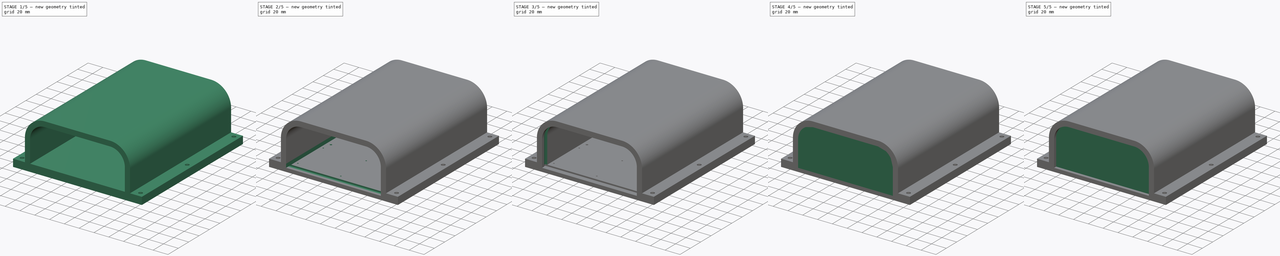
[diagram: build sequence overview — one tinted view per stage of 5, left to right]
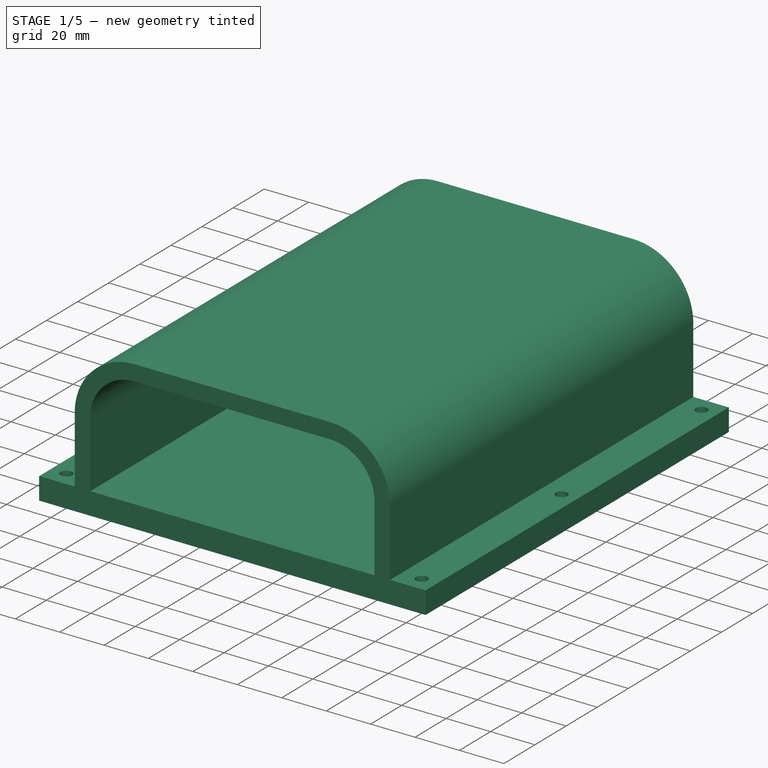
[diagram: stage 1 of 5 — iso view after this stage's code; geometry added in this stage tinted green]
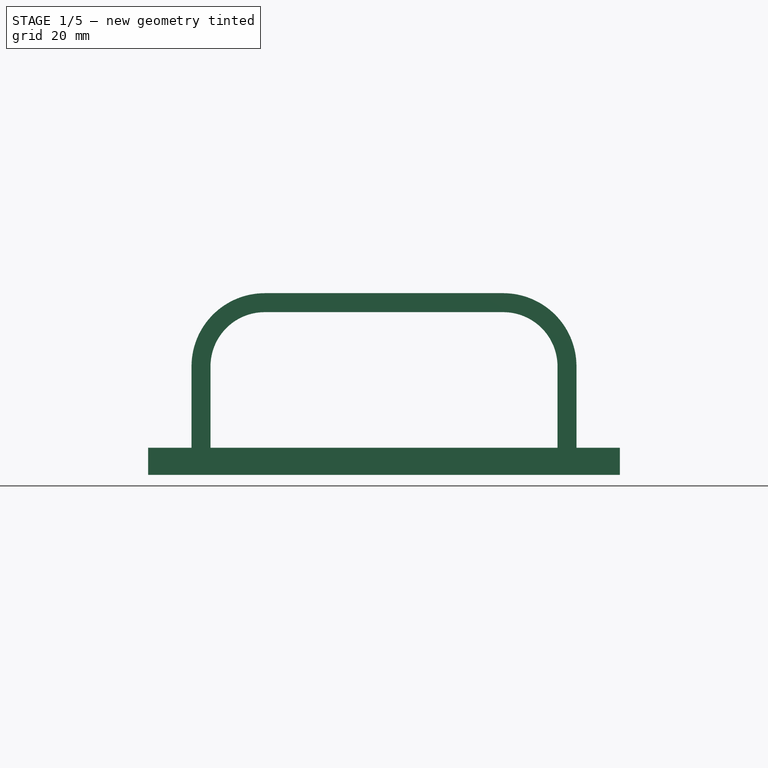
[diagram: stage 1 of 5 — front view after this stage's code; geometry added in this stage tinted green]
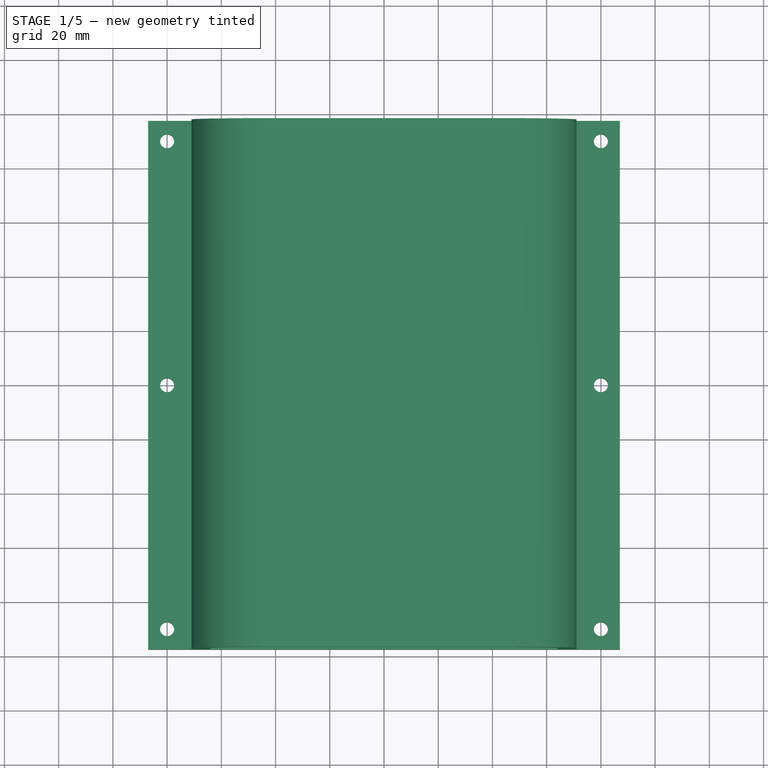
[diagram: stage 1 of 5 — top view after this stage's code; geometry added in this stage tinted green]
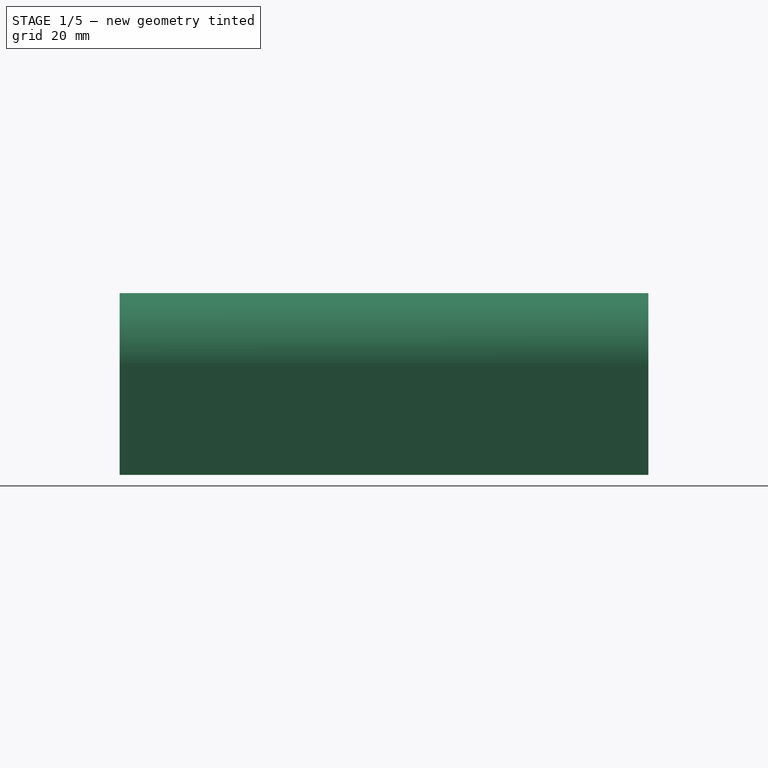
[diagram: stage 1 of 5 — right view after this stage's code; geometry added in this stage tinted green]
FCSTD DOCUMENT  (FreeCAD 0.21R33771 (Git))
Label: MainRaspberryHolder
License: All rights reserved
LicenseURL: https://en.wikipedia.org/wiki/All_rights_reserved
objects: Sketcher::SketchObject×10, PartDesign::Pocket×10, PartDesign::Pad×7, PartDesign::Body×3
note: 47 computed .brp shape members not serialized (recipe doc carries the construction recipe); baked Part::Feature solids carry a one-line shape summary decoded from their .brp

FEATURE [Sketcher::SketchObject] Sketch
  FullyConstrained = true
  MapMode = 5
  Support = -> [XY_Plane]
  sketch-geometry (14):
    g0: LineSegment StartX=-80 StartY=90 StartZ=0 EndX=80 EndY=90 EndZ=0
    g1: LineSegment StartX=80 StartY=90 StartZ=0 EndX=80 EndY=-90 EndZ=0
    g2: LineSegment StartX=80 StartY=-90 StartZ=0 EndX=-80 EndY=-90 EndZ=0
    g3: LineSegment StartX=-80 StartY=-90 StartZ=0 EndX=-80 EndY=90 EndZ=0
    g4: Circle CenterX=80 CenterY=90 CenterZ=0 NormalX=0 NormalY=0 NormalZ=1 AngleXU=0 Radius=2.6
    g5: Circle CenterX=-80 CenterY=90 CenterZ=0 NormalX=0 NormalY=0 NormalZ=1 AngleXU=0 Radius=2.6
    g6: Circle CenterX=-80 CenterY=-90 CenterZ=0 NormalX=0 NormalY=0 NormalZ=1 AngleXU=0 Radius=2.6
    g7: Circle CenterX=80 CenterY=-90 CenterZ=0 NormalX=0 NormalY=0 NormalZ=1 AngleXU=0 Radius=2.6
    g8: Circle CenterX=-80 CenterY=0 CenterZ=0 NormalX=0 NormalY=0 NormalZ=1 AngleXU=0 Radius=2.6
    g9: Circle CenterX=80 CenterY=0 CenterZ=0 NormalX=0 NormalY=0 NormalZ=1 AngleXU=0 Radius=2.6
    g10: LineSegment StartX=-87 StartY=97.5 StartZ=0 EndX=87 EndY=97.5 EndZ=0
    g11: LineSegment StartX=87 StartY=-97.5 StartZ=0 EndX=-87 EndY=-97.5 EndZ=0
    g12: LineSegment StartX=-87 StartY=-97.5 StartZ=0 EndX=-87 EndY=97.5 EndZ=0
    g13: LineSegment StartX=87 StartY=97.5 StartZ=0 EndX=87 EndY=-97.5 EndZ=0
  constraints (36):
    c: Coincident(g0,g1)
    c: Coincident(g1,g2)
    c: Coincident(g2,g3)
    c: Coincident(g3,g0)
    c: Horizontal(g0)
    c: Horizontal(g2)
    c: Vertical(g1)
    c: Vertical(g3)
    c: DistanceY(g3,g3) = 180
    c: DistanceX(g0,g0) = 160
    c: Symmetric(g0,g1,g-1)
    c: Coincident(g4,g0)
    c: Coincident(g5,g0)
    c: Coincident(g6,g2)
    c: Coincident(g7,g1)
    c: Diameter(g5) = 5.2
    c: PointOnObject(g8,g3)
    c: PointOnObject(g8,g-1)
    c: PointOnObject(g9,g1)
    c: PointOnObject(g9,g-1)
    c: Equal(g5,g8)
    c: Equal(g8,g6)
    c: Equal(g6,g7)
    c: Equal(g7,g9)
    c: Equal(g9,g4)
    c: Coincident(g11,g12)
    c: Coincident(g12,g10)
    c: Horizontal(g10)
    c: Vertical(g12)
    c: Vertical(g13)
    c: DistanceY(g12,g12) = 195
    c: Equal(g12,g13)
    c: Coincident(g10,g13)
    c: Coincident(g13,g11)
    c: Symmetric(g10,g11,g-1)
    c: DistanceX(g4,g10) = 7
FEATURE [PartDesign::Pad] Pad
  Direction = (0,0,1)
  Length = 10
  Length2 = 10
  Profile = -> Sketch
  ReferenceAxis = -> Sketch [N_Axis]
  Type = 0
FEATURE [Sketcher::SketchObject] Sketch001
  ExternalGeometry = -> [Pad]
  FullyConstrained = true
  MapMode = 5
  Placement = pos=(-7.8e-15,-97.5,0) rot=(1,0,0;1.5708rad)
  Support = -> [Pad]
  sketch-geometry (14):
    g0: LineSegment StartX=-64 StartY=10 StartZ=0 EndX=-64 EndY=40 EndZ=0
    g1: LineSegment StartX=-44 StartY=60 StartZ=0 EndX=44 EndY=60 EndZ=0
    g2: LineSegment StartX=64 StartY=40 StartZ=0 EndX=64 EndY=10 EndZ=0
    g3: LineSegment StartX=64 StartY=10 StartZ=0 EndX=71 EndY=10 EndZ=0
    g4: LineSegment StartX=-64 StartY=10 StartZ=0 EndX=-71 EndY=10 EndZ=0
    g5: LineSegment StartX=-71 StartY=10 StartZ=0 EndX=-71 EndY=40 EndZ=0
    g6: LineSegment StartX=-44 StartY=67 StartZ=0 EndX=44 EndY=67 EndZ=0
    g7: LineSegment StartX=71 StartY=40 StartZ=0 EndX=71 EndY=10 EndZ=0
    g8: ArcOfCircle CenterX=-44 CenterY=40 CenterZ=0 NormalX=0 NormalY=0 NormalZ=1 AngleXU=0 Radius=20 StartAngle=1.5708 EndAngle=3.14159
    g9: ArcOfCircle CenterX=-44 CenterY=40 CenterZ=0 NormalX=0 NormalY=0 NormalZ=1 AngleXU=0 Radius=27 StartAngle=1.5708 EndAngle=3.14159
    g10: ArcOfCircle CenterX=44 CenterY=40 CenterZ=0 NormalX=0 NormalY=0 NormalZ=1 AngleXU=0 Radius=20 StartAngle=0 EndAngle=1.5708
    g11: ArcOfCircle CenterX=44 CenterY=40 CenterZ=0 NormalX=0 NormalY=0 NormalZ=1 AngleXU=0 Radius=27 StartAngle=0 EndAngle=1.5708
    g12: LineSegment StartX=0 StartY=10 StartZ=0 EndX=-64 EndY=10 EndZ=0
    g13: LineSegment StartX=0 StartY=10 StartZ=0 EndX=64 EndY=10 EndZ=0
  constraints (36):
    c: PointOnObject(g0,g-3)
    c: Horizontal(g1)
    c: PointOnObject(g2,g-3)
    c: Coincident(g3,g2)
    c: PointOnObject(g3,g-3)
    c: Coincident(g4,g0)
    c: PointOnObject(g4,g-3)
    c: Coincident(g5,g4)
    c: Vertical(g5)
    c: Horizontal(g6)
    c: Coincident(g7,g3)
    c: Vertical(g7)
    c: Vertical(g0)
    c: Vertical(g2)
    c: Tangent(g0,g8) = 1.5708
    c: Tangent(g1,g8) = 1.5708
    c: Tangent(g5,g9) = 1.5708
    c: Tangent(g6,g9) = 1.5708
    c: Tangent(g1,g10) = 1.5708
    c: Tangent(g2,g10) = 1.5708
    c: Tangent(g6,g11) = 1.5708
    c: Tangent(g7,g11) = 1.5708
    c: Coincident(g8,g9)
    c: Coincident(g10,g11)
    c: Horizontal(g8,g10)
    c: DistanceX(g0,g3) = 135
    c: DistanceX(g4,g4) = 7
    c: PointOnObject(g12,g-2)
    c: Coincident(g12,g0)
    c: Horizontal(g12)
    c: PointOnObject(g13,g-2)
    c: Coincident(g13,g2)
    c: Horizontal(g13)
    c: Equal(g12,g13)
    c: DistanceY(g2,g1) = 50
    c: DistanceX(g1,g2) = 20
FEATURE [PartDesign::Pad] Pad001
  BaseFeature = -> Pad
  Direction = (-1e-16,-1,2e-16)
  Length = 195
  Length2 = 10
  Profile = -> Sketch001
  ReferenceAxis = -> Sketch001 [N_Axis]
  Reversed = true
  Type = 0
FEATURE [Sketcher::SketchObject] Sketch004
  FullyConstrained = true
  MapMode = 5
  Placement = pos=(0,0,5) rot=(1,0,0;3.14159rad)
  sketch-geometry (24):
    g0: LineSegment StartX=-67 StartY=97.5 StartZ=0 EndX=67 EndY=97.5 EndZ=0
    g1: LineSegment StartX=67 StartY=97.5 StartZ=0 EndX=67 EndY=-97.5 EndZ=0
    g2: LineSegment StartX=67 StartY=-97.5 StartZ=0 EndX=-67 EndY=-97.5 EndZ=0
    g3: LineSegment StartX=-67 StartY=-97.5 StartZ=0 EndX=-67 EndY=97.5 EndZ=0
    g4: LineSegment StartX=-67 StartY=75 StartZ=0 EndX=-77 EndY=75 EndZ=0
    g5: LineSegment StartX=-77 StartY=75 StartZ=0 EndX=-77 EndY=25 EndZ=0
    g6: LineSegment StartX=-77 StartY=25 StartZ=0 EndX=-67 EndY=25 EndZ=0
    g7: LineSegment StartX=-67 StartY=-25 StartZ=0 EndX=-77 EndY=-25 EndZ=0
    g8: LineSegment StartX=-77 StartY=-25 StartZ=0 EndX=-77 EndY=-75 EndZ=0
    g9: LineSegment StartX=-77 StartY=-75 StartZ=0 EndX=-67 EndY=-75 EndZ=0
    g10: LineSegment StartX=-67 StartY=-75 StartZ=0 EndX=-67 EndY=-97.5 EndZ=0
    g11: LineSegment StartX=-67 StartY=-25 StartZ=0 EndX=-67 EndY=0 EndZ=0
    g12: LineSegment StartX=-67 StartY=0 StartZ=0 EndX=-67 EndY=25 EndZ=0
    g13: LineSegment StartX=-67 StartY=75 StartZ=0 EndX=-67 EndY=97.5 EndZ=0
    g14: LineSegment StartX=67 StartY=97.5 StartZ=0 EndX=67 EndY=75 EndZ=0
    g15: LineSegment StartX=67 StartY=75 StartZ=0 EndX=77 EndY=75 EndZ=0
    g16: LineSegment StartX=77 StartY=75 StartZ=0 EndX=77 EndY=25 EndZ=0
    g17: LineSegment StartX=77 StartY=25 StartZ=0 EndX=67 EndY=25 EndZ=0
    g18: LineSegment StartX=67 StartY=25 StartZ=0 EndX=67 EndY=0 EndZ=0
    g19: LineSegment StartX=67 StartY=0 StartZ=0 EndX=67 EndY=-25 EndZ=0
    g20: LineSegment StartX=67 StartY=-25 StartZ=0 EndX=77 EndY=-25 EndZ=0
    g21: LineSegment StartX=77 StartY=-25 StartZ=0 EndX=77 EndY=-75 EndZ=0
    g22: LineSegment StartX=77 StartY=-75 StartZ=0 EndX=67 EndY=-75 EndZ=0
    g23: LineSegment StartX=67 StartY=-75 StartZ=0 EndX=67 EndY=-97.5 EndZ=0
  constraints (70):
    c: Coincident(g0,g1)
    c: Coincident(g1,g2)
    c: Coincident(g2,g3)
    c: Coincident(g3,g0)
    c: Horizontal(g0)
    c: Horizontal(g2)
    c: Vertical(g1)
    c: Vertical(g3)
    c: Symmetric(g0,g1,g-1)
    c: DistanceX(g-1,g0) = 67
    c: DistanceY(g3,g3) = 195
    c: PointOnObject(g4,g3)
    c: Horizontal(g4)
    c: Coincident(g5,g4)
    c: Vertical(g5)
    c: Coincident(g6,g5)
    c: PointOnObject(g6,g3)
    c: Horizontal(g6)
    c: PointOnObject(g7,g3)
    c: Horizontal(g7)
    c: Coincident(g8,g7)
    c: Vertical(g8)
    c: Coincident(g9,g8)
    c: PointOnObject(g9,g3)
    c: Horizontal(g9)
    c: Coincident(g10,g9)
    c: Coincident(g10,g2)
    c: Coincident(g11,g7)
    c: PointOnObject(g11,g-1)
    c: Vertical(g11)
    c: PointOnObject(g12,g-1)
    c: Coincident(g12,g6)
    c: Vertical(g12)
    c: Coincident(g13,g4)
    c: Coincident(g13,g0)
    c: Equal(g12,g11)
    c: DistanceY(g11,g11) = 25
    c: DistanceY(g5,g5) = 50
    c: Equal(g5,g8)
    c: Equal(g4,g7)
    c: DistanceX(g4,g4) = 10
    c: Coincident(g14,g0)
    c: PointOnObject(g14,g1)
    c: Coincident(g15,g14)
    c: Horizontal(g15)
    c: Coincident(g16,g15)
    c: Coincident(g17,g16)
    c: PointOnObject(g17,g1)
    c: Horizontal(g17)
    c: Coincident(g18,g17)
    c: Vertical(g18)
    c: Equal(g18,g12)
    c: PointOnObject(g18,g-1)
    c: Vertical(g16)
    c: Equal(g16,g5)
    c: Equal(g15,g4)
    c: Coincident(g19,g18)
    c: PointOnObject(g19,g1)
    c: Coincident(g20,g19)
    c: Horizontal(g20)
    c: Coincident(g21,g20)
    c: Vertical(g21)
    c: Coincident(g22,g21)
    c: PointOnObject(g22,g1)
    c: Horizontal(g22)
    c: Coincident(g23,g22)
    c: Coincident(g23,g2)
    c: Equal(g18,g19)
    c: Equal(g20,g17)
    c: Equal(g21,g16)
FEATURE [PartDesign::Pad] Pad002
  Direction = (0,0,-1)
  Length = 5
  Length2 = 10
  Placement = pos=(0,0,5) rot=(1,0,0;3.14159rad)
  Profile = -> Sketch004
  ReferenceAxis = -> Sketch004 [N_Axis]
  Type = 0
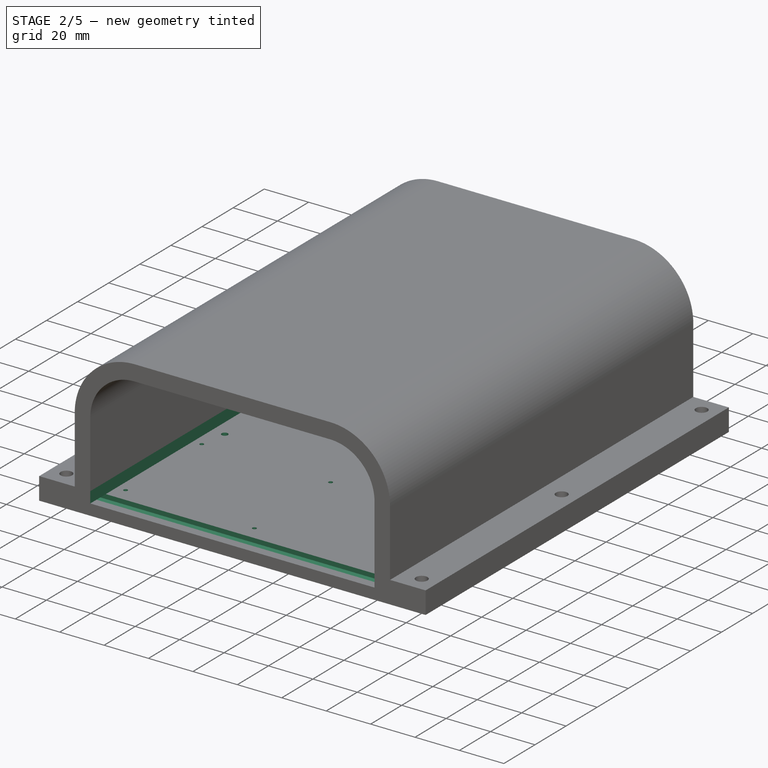
[diagram: stage 2 of 5 — iso view after this stage's code; geometry added in this stage tinted green]
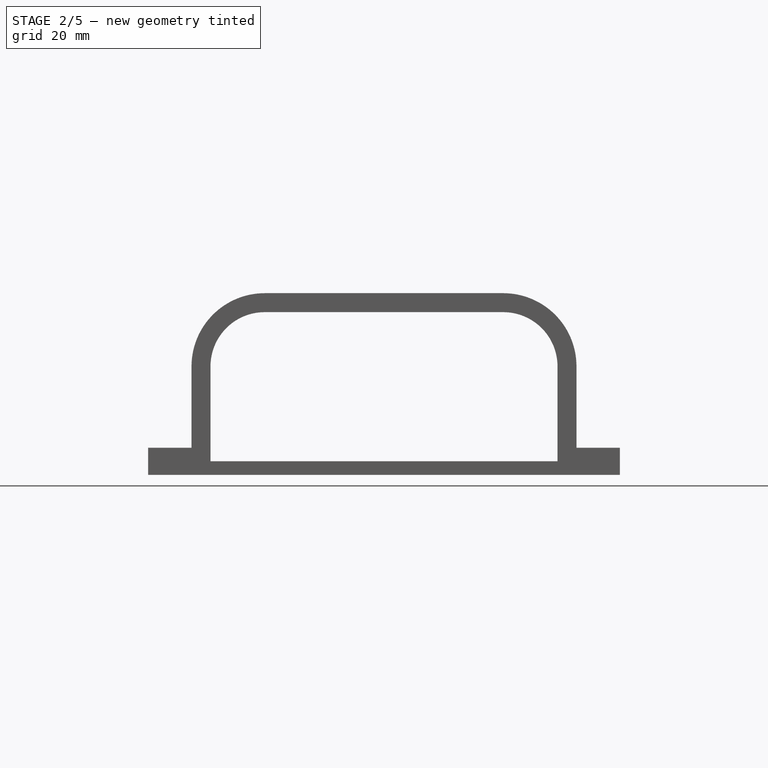
[diagram: stage 2 of 5 — front view after this stage's code; geometry added in this stage tinted green]
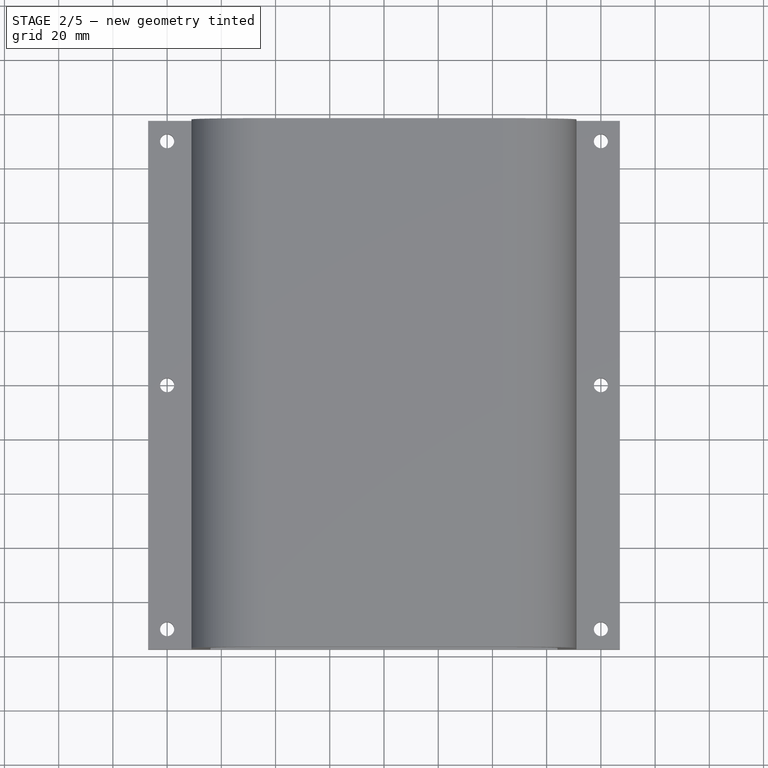
[diagram: stage 2 of 5 — top view after this stage's code; geometry added in this stage tinted green]
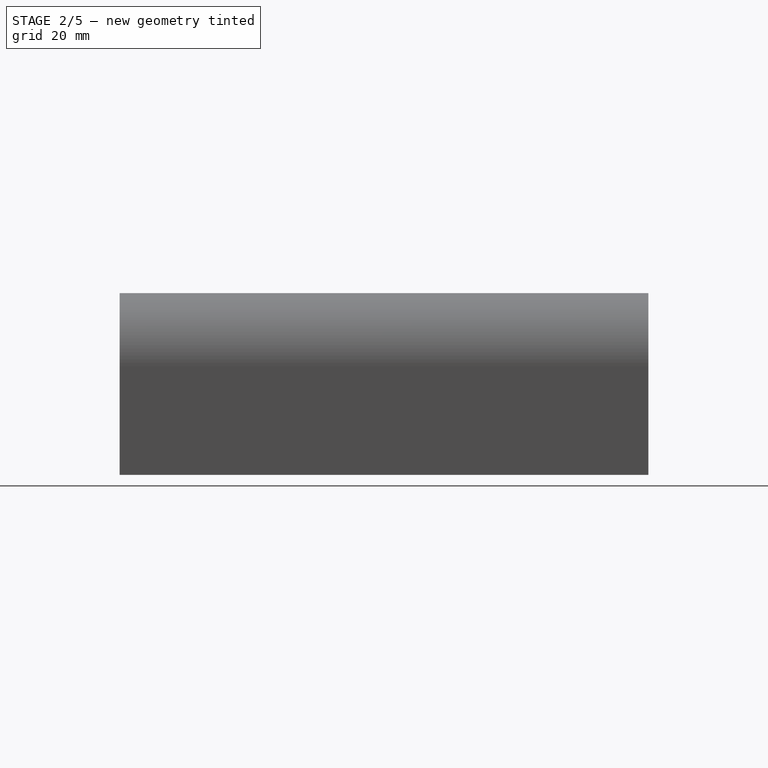
[diagram: stage 2 of 5 — right view after this stage's code; geometry added in this stage tinted green]
FEATURE [Sketcher::SketchObject] Sketch002
  ExternalGeometry = -> [Pad001]
  FullyConstrained = true
  MapMode = 5
  Placement = pos=(0,0,0) rot=(1,0,0;3.14159rad)
  Support = -> [Pad001]
  sketch-geometry (21):
    g0: LineSegment StartX=-58.05 StartY=19.5 StartZ=0 EndX=57.75 EndY=19.5 EndZ=0
    g1: LineSegment StartX=57.75 StartY=19.5 StartZ=0 EndX=57.75 EndY=-45.3 EndZ=0
    g2: LineSegment StartX=57.75 StartY=-45.3 StartZ=0 EndX=-58.05 EndY=-45.3 EndZ=0
    g3: LineSegment StartX=-58.05 StartY=-45.3 StartZ=0 EndX=-58.05 EndY=19.5 EndZ=0
    g4: LineSegment StartX=-60 StartY=80.5 StartZ=0 EndX=-2 EndY=80.5 EndZ=0
    g5: LineSegment StartX=-2 StartY=80.5 StartZ=0 EndX=-2 EndY=31.5 EndZ=0
    g6: LineSegment StartX=-2 StartY=31.5 StartZ=0 EndX=-60 EndY=31.5 EndZ=0
    g7: LineSegment StartX=-60 StartY=31.5 StartZ=0 EndX=-60 EndY=80.5 EndZ=0
    g8: LineSegment StartX=37.65 StartY=-55.3 StartZ=0 EndX=37.65 EndY=-89.6 EndZ=0
    g9: LineSegment StartX=37.65 StartY=-89.6 StartZ=0 EndX=-37.65 EndY=-89.6 EndZ=0
    g10: LineSegment StartX=-37.65 StartY=-89.6 StartZ=0 EndX=-37.65 EndY=-55.3 EndZ=0
    g11: LineSegment StartX=-37.65 StartY=-55.3 StartZ=0 EndX=0 EndY=-55.3 EndZ=0
    g12: LineSegment StartX=0 StartY=-55.3 StartZ=0 EndX=37.65 EndY=-55.3 EndZ=0
    g13: Circle CenterX=-2 CenterY=80.5 CenterZ=0 NormalX=0 NormalY=0 NormalZ=1 AngleXU=0 Radius=0.9
    g14: Circle CenterX=-60 CenterY=80.5 CenterZ=0 NormalX=0 NormalY=0 NormalZ=1 AngleXU=0 Radius=0.9
    g15: Circle CenterX=-60 CenterY=31.5 CenterZ=0 NormalX=0 NormalY=0 NormalZ=1 AngleXU=0 Radius=0.9
    g16: Circle CenterX=-2 CenterY=31.5 CenterZ=0 NormalX=0 NormalY=0 NormalZ=1 AngleXU=0 Radius=0.9
    g17: Circle CenterX=-58.05 CenterY=19.5 CenterZ=0 NormalX=0 NormalY=0 NormalZ=1 AngleXU=0 Radius=1.4
    g18: Circle CenterX=57.75 CenterY=19.5 CenterZ=0 NormalX=0 NormalY=0 NormalZ=1 AngleXU=0 Radius=1.4
    g19: Circle CenterX=-58.05 CenterY=-45.3 CenterZ=0 NormalX=0 NormalY=0 NormalZ=1 AngleXU=0 Radius=1.4
    g20: Circle CenterX=57.75 CenterY=-45.3 CenterZ=0 NormalX=0 NormalY=0 NormalZ=1 AngleXU=0 Radius=1.4
  constraints (55):
    c: Coincident(g0,g1)
    c: Coincident(g1,g2)
    c: Coincident(g2,g3)
    c: Coincident(g3,g0)
    c: Horizontal(g0)
    c: Horizontal(g2)
    c: Vertical(g1)
    c: Vertical(g3)
    c: DistanceX(g2,g2) = 115.8
    c: DistanceY(g1,g1) = 64.8
    c: Coincident(g4,g5)
    c: Coincident(g5,g6)
    c: Coincident(g6,g7)
    c: Coincident(g7,g4)
    c: Horizontal(g4)
    c: Horizontal(g6)
    c: Vertical(g5)
    c: Vertical(g7)
    c: DistanceX(g4,g4) = 58
    c: DistanceY(g7,g7) = 49
    c: DistanceY(g0,g6) = 12
    c: Coincident(g8,g9)
    c: Coincident(g9,g10)
    c: Horizontal(g9)
    c: Vertical(g8)
    c: Vertical(g10)
    c: DistanceX(g10,g8) = 75.3
    c: DistanceY(g10,g10) = 34.3
    c: DistanceY(g10,g2) = 10
    c: Coincident(g11,g10)
    c: Horizontal(g11)
    c: Coincident(g12,g11)
    c: Coincident(g12,g8)
    c: Horizontal(g12)
    c: PointOnObject(g11,g-2)
    c: Equal(g12,g11)
    c: DistanceY(g4,g-4) = 17
    c: DistanceX(g-1,g0) = 57.75
    c: Coincident(g13,g4)
    c: Coincident(g14,g4)
    c: Coincident(g15,g6)
    c: Coincident(g16,g5)
    c: Diameter(g14) = 1.8
    c: Equal(g14,g13)
    c: Equal(g13,g16)
    c: Equal(g16,g15)
    c: Coincident(g17,g0)
    c: Coincident(g18,g0)
    c: Coincident(g19,g2)
    c: Coincident(g20,g1)
    c: Diameter(g17) = 2.8
    c: Equal(g17,g18)
    c: Equal(g18,g20)
    c: Equal(g20,g19)
    c: DistanceX(g-4,g14) = 27
FEATURE [Sketcher::SketchObject] Sketch003
  ExternalGeometry = -> [Pad001]
  FullyConstrained = true
  MapMode = 5
  Placement = pos=(0,0,0) rot=(1,0,0;3.14159rad)
  Support = -> [Pad001]
  sketch-geometry (24):
    g0: LineSegment StartX=-67 StartY=97.5 StartZ=0 EndX=67 EndY=97.5 EndZ=0
    g1: LineSegment StartX=67 StartY=97.5 StartZ=0 EndX=67 EndY=-97.5 EndZ=0
    g2: LineSegment StartX=67 StartY=-97.5 StartZ=0 EndX=-67 EndY=-97.5 EndZ=0
    g3: LineSegment StartX=-67 StartY=-97.5 StartZ=0 EndX=-67 EndY=97.5 EndZ=0
    g4: LineSegment StartX=-67 StartY=97.5 StartZ=0 EndX=-67 EndY=75 EndZ=0
    g5: LineSegment StartX=-67 StartY=75 StartZ=0 EndX=-77 EndY=75 EndZ=0
    g6: LineSegment StartX=-77 StartY=75 StartZ=0 EndX=-77 EndY=25 EndZ=0
    g7: LineSegment StartX=-77 StartY=25 StartZ=0 EndX=-67 EndY=25 EndZ=0
    g8: LineSegment StartX=-67 StartY=-25 StartZ=0 EndX=-77 EndY=-25 EndZ=0
    g9: LineSegment StartX=-77 StartY=-25 StartZ=0 EndX=-77 EndY=-75 EndZ=0
    g10: LineSegment StartX=-77 StartY=-75 StartZ=0 EndX=-67 EndY=-75 EndZ=0
    g11: LineSegment StartX=-67 StartY=-75 StartZ=0 EndX=-67 EndY=-97.5 EndZ=0
    g12: LineSegment StartX=-67 StartY=0 StartZ=0 EndX=-67 EndY=-25 EndZ=0
    g13: LineSegment StartX=-67 StartY=25 StartZ=0 EndX=-67 EndY=0 EndZ=0
    g14: LineSegment StartX=67 StartY=97.5 StartZ=0 EndX=67 EndY=75 EndZ=0
    g15: LineSegment StartX=67 StartY=75 StartZ=0 EndX=77 EndY=75 EndZ=0
    g16: LineSegment StartX=77 StartY=75 StartZ=0 EndX=77 EndY=25 EndZ=0
    g17: LineSegment StartX=77 StartY=25 StartZ=0 EndX=67 EndY=25 EndZ=0
    g18: LineSegment StartX=67 StartY=25 StartZ=0 EndX=67 EndY=0 EndZ=0
    g19: LineSegment StartX=67 StartY=0 StartZ=0 EndX=67 EndY=-25 EndZ=0
    g20: LineSegment StartX=67 StartY=-25 StartZ=0 EndX=77 EndY=-25 EndZ=0
    g21: LineSegment StartX=77 StartY=-25 StartZ=0 EndX=77 EndY=-75 EndZ=0
    g22: LineSegment StartX=77 StartY=-75 StartZ=0 EndX=67 EndY=-75 EndZ=0
    g23: LineSegment StartX=67 StartY=-75 StartZ=0 EndX=67 EndY=-97.5 EndZ=0
  constraints (71):
    c: Coincident(g0,g1)
    c: Coincident(g1,g2)
    c: Coincident(g2,g3)
    c: Coincident(g3,g0)
    c: Horizontal(g0)
    c: Horizontal(g2)
    c: Vertical(g1)
    c: Vertical(g3)
    c: Symmetric(g0,g1,g-1)
    c: DistanceX(g0,g-3) = 20
    c: DistanceY(g3,g3) = 195
    c: Coincident(g4,g0)
    c: PointOnObject(g4,g3)
    c: Coincident(g5,g4)
    c: Coincident(g6,g5)
    c: Vertical(g6)
    c: Coincident(g7,g6)
    c: PointOnObject(g7,g3)
    c: Horizontal(g7)
    c: Horizontal(g5)
    c: Horizontal(g8)
    c: Coincident(g9,g8)
    c: Vertical(g9)
    c: Coincident(g10,g9)
    c: PointOnObject(g10,g3)
    c: Horizontal(g10)
    c: Coincident(g11,g10)
    c: Coincident(g11,g2)
    c: Equal(g6,g9)
    c: DistanceX(g5,g5) = 10
    c: Equal(g5,g8)
    c: PointOnObject(g12,g-1)
    c: Coincident(g12,g8)
    c: Coincident(g13,g7)
    c: PointOnObject(g13,g-1)
    c: Vertical(g13)
    c: Equal(g13,g12)
    c: PointOnObject(g8,g3)
    c: PointOnObject(g12,g3)
    c: DistanceY(g6,g6) = 50
    c: DistanceY(g13,g13) = 25
    c: Coincident(g14,g0)
    c: PointOnObject(g14,g1)
    c: Coincident(g15,g14)
    c: Horizontal(g15)
    c: Coincident(g16,g15)
    c: Vertical(g16)
    c: Coincident(g17,g16)
    c: PointOnObject(g17,g1)
    c: Horizontal(g17)
    c: Coincident(g18,g17)
    c: PointOnObject(g18,g-1)
    c: Vertical(g18)
    c: PointOnObject(g19,g-1)
    c: PointOnObject(g19,g1)
    c: Vertical(g19)
    c: Coincident(g20,g19)
    c: Horizontal(g20)
    c: Coincident(g21,g20)
    c: Vertical(g21)
    c: Coincident(g22,g21)
    c: PointOnObject(g22,g1)
    c: Coincident(g23,g22)
    c: Coincident(g23,g2)
    c: Horizontal(g22)
    c: Equal(g16,g21)
    c: Equal(g15,g5)
    c: Equal(g15,g20)
    c: Equal(g18,g19)
    c: Equal(g18,g13)
    c: Equal(g16,g6)
FEATURE [PartDesign::Pocket] Pocket
  BaseFeature = -> Pad001
  Direction = (0,0,1)
  Length = 5
  Length2 = 5
  Profile = -> Sketch003
  ReferenceAxis = -> Sketch003 [N_Axis]
  Type = 0
FEATURE [PartDesign::Pocket] Pocket001
  BaseFeature = -> Pocket
  Direction = (0,0,-1)
  Length = 5
  Length2 = 5
  Profile = -> Pocket [Face10]
  Type = 0
FEATURE [PartDesign::Pocket] Pocket002
  BaseFeature = -> Pad002
  Direction = (0,0,1)
  Length = 5
  Length2 = 5
  Placement = pos=(0,0,5) rot=(1,0,0;3.14159rad)
  Profile = -> Sketch002
  ReferenceAxis = -> Sketch002 [N_Axis]
  Type = 0
FEATURE [PartDesign::Body] Body
  Group = -> [Sketch,Pad,Sketch001,Pad001,Sketch003,Pocket,Pocket001,Sketch005,Pad003,Sketch006,Pocket003,Sketch008,Pad006]
  Origin = -> Origin
  Tip = -> Pad006
FEATURE [Sketcher::SketchObject] Sketch009
  ExternalGeometry = -> [Pocket002]
  FullyConstrained = true
  MapMode = 5
  Placement = pos=(0,0,5) rot=(0,0,1;0rad)
  Support = -> [Pocket002]
  sketch-geometry (4):
    g0: LineSegment StartX=-67 StartY=-93.5 StartZ=0 EndX=67 EndY=-93.5 EndZ=0
    g1: LineSegment StartX=67 StartY=-93.5 StartZ=0 EndX=67 EndY=-87.5 EndZ=0
    g2: LineSegment StartX=67 StartY=-87.5 StartZ=0 EndX=-67 EndY=-87.5 EndZ=0
    g3: LineSegment StartX=-67 StartY=-87.5 StartZ=0 EndX=-67 EndY=-93.5 EndZ=0
  constraints (12):
    c: Coincident(g0,g1)
    c: Coincident(g1,g2)
    c: Coincident(g2,g3)
    c: Coincident(g3,g0)
    c: Horizontal(g0)
    c: Horizontal(g2)
    c: Vertical(g1)
    c: Vertical(g3)
    c: Equal(g-3,g0)
    c: DistanceY(g3,g3) = 6
    c: DistanceY(g-3,g0) = 4
    c: Vertical(g0,g-3)
FEATURE [PartDesign::Pocket] Pocket009
  BaseFeature = -> Pocket002
  Direction = (0,1e-16,-1)
  Length = 2
  Length2 = 5
  Placement = pos=(0,0,5) rot=(1,0,0;3.14159rad)
  Profile = -> Sketch009
  ReferenceAxis = -> Sketch009 [N_Axis]
  Type = 0
FEATURE [PartDesign::Body] Body001
  Group = -> [Sketch004,Pad002,Sketch002,Pocket002,Sketch009,Pocket009]
  Origin = -> Origin001
  Tip = -> Pocket009
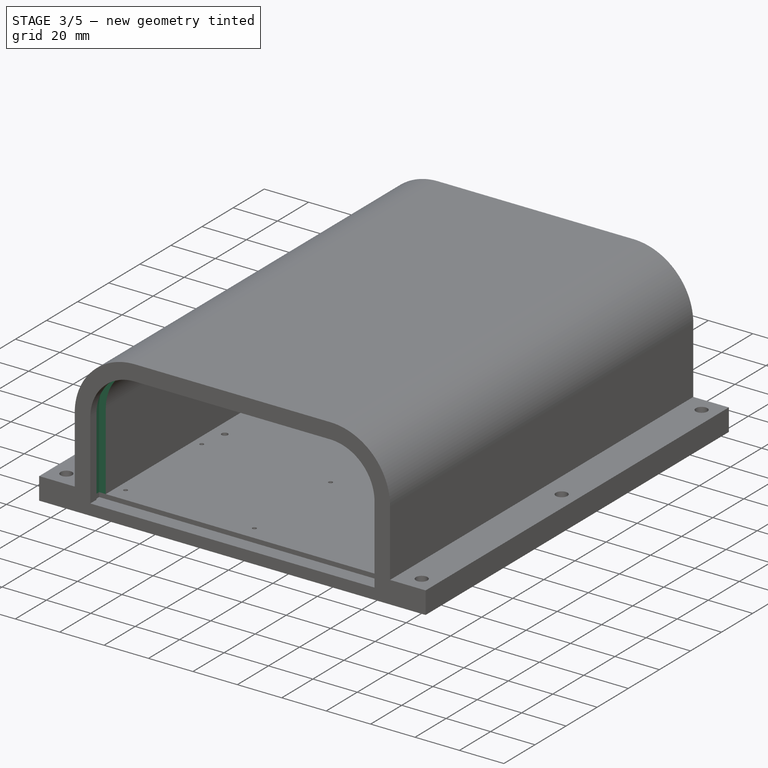
[diagram: stage 3 of 5 — iso view after this stage's code; geometry added in this stage tinted green]
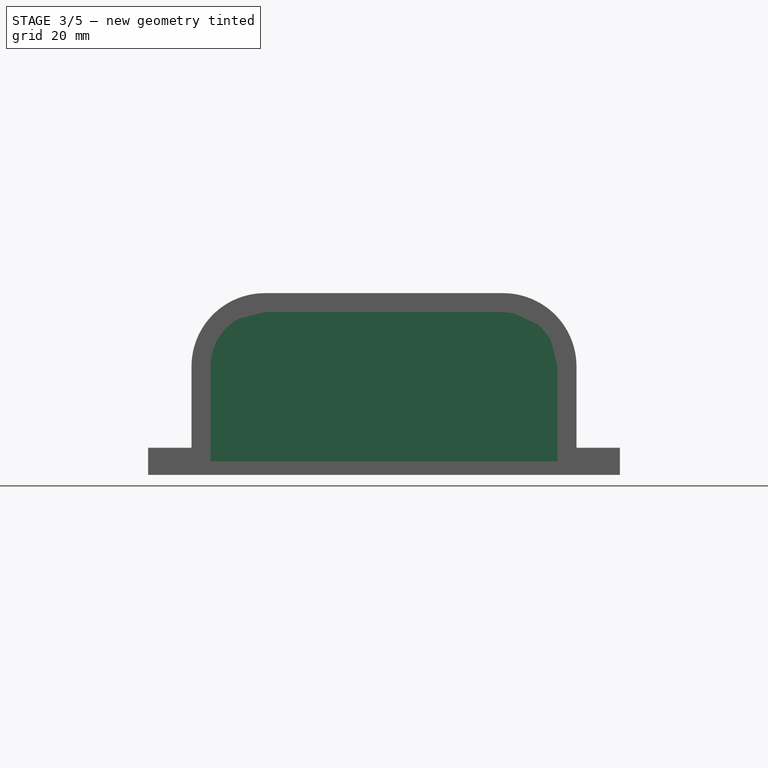
[diagram: stage 3 of 5 — front view after this stage's code; geometry added in this stage tinted green]
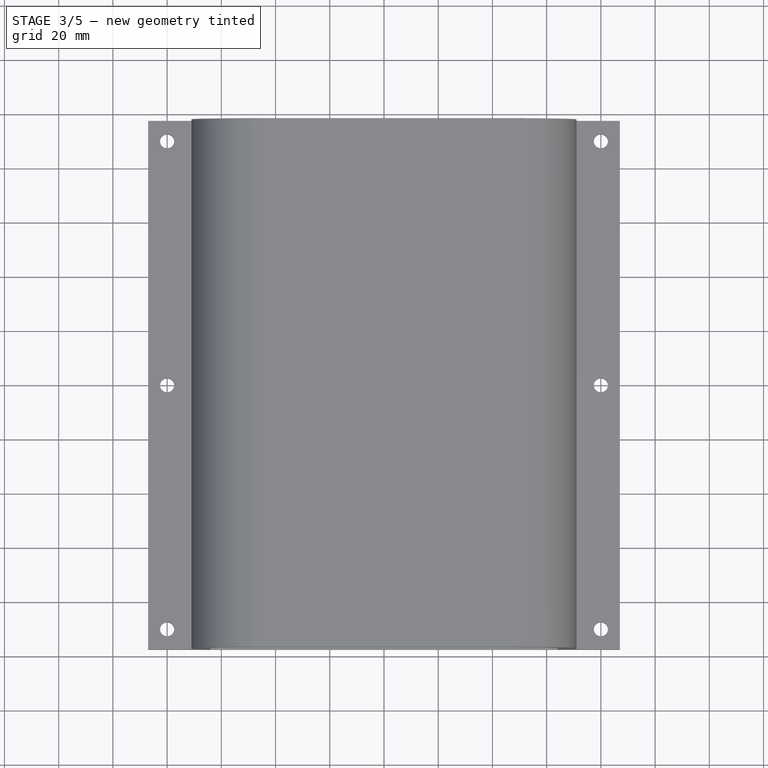
[diagram: stage 3 of 5 — top view after this stage's code; geometry added in this stage tinted green]
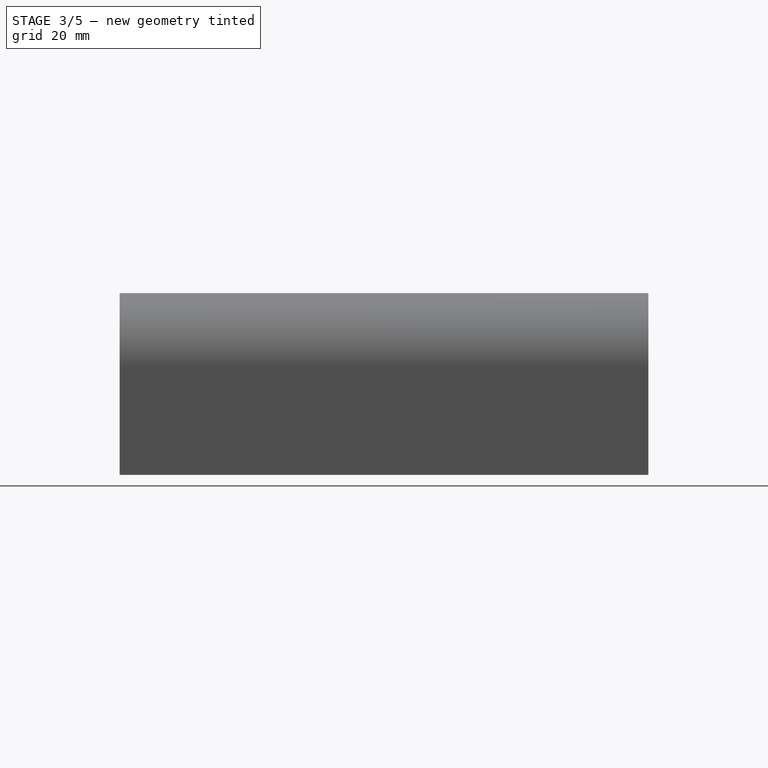
[diagram: stage 3 of 5 — right view after this stage's code; geometry added in this stage tinted green]
FEATURE [Sketcher::SketchObject] Sketch005
  ExternalGeometry = -> [Pocket001]
  FullyConstrained = true
  MapMode = 5
  Placement = pos=(0,97.5,0) rot=(0,0.707107,0.707107;3.14159rad)
  Support = -> [Pocket001]
  sketch-geometry (6):
    g0: LineSegment StartX=-64 StartY=5 StartZ=0 EndX=64 EndY=5 EndZ=0
    g1: ArcOfCircle CenterX=-44 CenterY=40 CenterZ=0 NormalX=0 NormalY=0 NormalZ=1 AngleXU=0 Radius=20 StartAngle=1.5708 EndAngle=3.14159
    g2: ArcOfCircle CenterX=44 CenterY=40 CenterZ=0 NormalX=0 NormalY=0 NormalZ=1 AngleXU=0 Radius=20 StartAngle=0 EndAngle=1.5708
    g3: LineSegment StartX=-44 StartY=60 StartZ=0 EndX=44 EndY=60 EndZ=0
    g4: LineSegment StartX=-64 StartY=40 StartZ=0 EndX=-64 EndY=5 EndZ=0
    g5: LineSegment StartX=64 StartY=40 StartZ=0 EndX=64 EndY=5 EndZ=0
  constraints (14):
    c: Coincident(g1,g-4)
    c: Coincident(g2,g-3)
    c: Coincident(g-4,g1)
    c: Coincident(g-3,g2)
    c: DistanceY(g1,g1) = 20
    c: DistanceY(g2,g2) = 20
    c: Coincident(g3,g1)
    c: Coincident(g3,g2)
    c: Coincident(g4,g1)
    c: Coincident(g4,g0)
    c: Coincident(g5,g2)
    c: Coincident(g5,g0)
    c: Coincident(g-6,g0)
    c: Coincident(g-5,g0)
FEATURE [PartDesign::Pad] Pad003
  BaseFeature = -> Pocket001
  Direction = (0,1,-2e-16)
  Length = 6
  Length2 = 10
  Profile = -> Sketch005
  ReferenceAxis = -> Sketch005 [N_Axis]
  Reversed = true
  Type = 0
FEATURE [Sketcher::SketchObject] Sketch006
  ExternalGeometry = -> [Pad003]
  FullyConstrained = true
  MapMode = 5
  Placement = pos=(0,-97.5,0) rot=(1,0,0;1.5708rad)
  Support = -> [Pad003]
  sketch-geometry (6):
    g0: ArcOfCircle CenterX=-44 CenterY=40 CenterZ=0 NormalX=0 NormalY=0 NormalZ=1 AngleXU=0 Radius=23 StartAngle=1.5708 EndAngle=3.14159
    g1: ArcOfCircle CenterX=44 CenterY=40 CenterZ=0 NormalX=0 NormalY=0 NormalZ=1 AngleXU=0 Radius=23 StartAngle=0 EndAngle=1.5708
    g2: LineSegment StartX=-44 StartY=63 StartZ=0 EndX=44 EndY=63 EndZ=0
    g3: LineSegment StartX=-67 StartY=40 StartZ=0 EndX=-67 EndY=0 EndZ=0
    g4: LineSegment StartX=-67 StartY=-4e-16 StartZ=0 EndX=67 EndY=-4e-16 EndZ=0
    g5: LineSegment StartX=67 StartY=-4e-16 StartZ=0 EndX=67 EndY=40 EndZ=0
  constraints (18):
    c: Coincident(g0,g-3)
    c: DistanceY(g-3,g0) = 3
    c: Horizontal(g0,g-3)
    c: Vertical(g0,g-3)
    c: Coincident(g1,g-4)
    c: Vertical(g1,g-4)
    c: Horizontal(g-4,g1)
    c: DistanceY(g-4,g1) = 3
    c: Coincident(g2,g0)
    c: Coincident(g2,g1)
    c: Coincident(g3,g0)
    c: Vertical(g3)
    c: Coincident(g4,g3)
    c: Horizontal(g4)
    c: Coincident(g5,g4)
    c: Coincident(g5,g1)
    c: Vertical(g5)
    c: PointOnObject(g-1,g4)
FEATURE [PartDesign::Pocket] Pocket003
  BaseFeature = -> Pad003
  Direction = (0,1,-2e-16)
  Length = 10
  Length2 = 5
  Profile = -> Sketch006
  ReferenceAxis = -> Sketch006 [N_Axis]
  Type = 0
FEATURE [PartDesign::Body] Body002
  Group = -> [Sketch007,Pad004,Pocket004,Pocket005,Pocket006,Pocket007,Pad005,Pocket008]
  Origin = -> Origin002
  Tip = -> Pocket008
FEATURE [Sketcher::SketchObject] Sketch008
  ExternalGeometry = -> [Pocket003]
  FullyConstrained = false
  MapMode = 5
  Placement = pos=(0,-97.5,0) rot=(1,0,0;1.5708rad)
  Support = -> [Pocket003]
  sketch-geometry (12):
    g0: LineSegment StartX=-44 StartY=63 StartZ=0 EndX=44 EndY=63 EndZ=0
    g1: LineSegment StartX=44 StartY=60 StartZ=0 EndX=-44 EndY=60 EndZ=0
    g2: LineSegment StartX=-64 StartY=5 StartZ=0 EndX=-67 EndY=5 EndZ=0
    g3: LineSegment StartX=64 StartY=5 StartZ=0 EndX=67 EndY=5 EndZ=0
    g4: ArcOfCircle CenterX=-44 CenterY=40 CenterZ=0 NormalX=0 NormalY=0 NormalZ=1 AngleXU=0 Radius=20 StartAngle=1.5708 EndAngle=3.14159
    g5: ArcOfCircle CenterX=-44 CenterY=40 CenterZ=0 NormalX=0 NormalY=0 NormalZ=1 AngleXU=0 Radius=23 StartAngle=1.5708 EndAngle=3.14159
    g6: LineSegment StartX=-67 StartY=40 StartZ=0 EndX=-67 EndY=5 EndZ=0
    g7: LineSegment StartX=-64 StartY=40 StartZ=0 EndX=-64 EndY=5 EndZ=0
    g8: LineSegment StartX=67 StartY=5 StartZ=0 EndX=67 EndY=40 EndZ=0
    g9: LineSegment StartX=64 StartY=5 StartZ=0 EndX=64 EndY=40 EndZ=0
    g10: ArcOfCircle CenterX=44 CenterY=40 CenterZ=0 NormalX=0 NormalY=0 NormalZ=1 AngleXU=0 Radius=23 StartAngle=0 EndAngle=1.5708
    g11: ArcOfCircle CenterX=44 CenterY=40 CenterZ=0 NormalX=0 NormalY=0 NormalZ=1 AngleXU=0 Radius=20 StartAngle=4.938e-13 EndAngle=1.5708
  constraints (28):
    c: Coincident(g0,g-5)
    c: Coincident(g0,g-4)
    c: Coincident(g1,g-3)
    c: Coincident(g1,g-6)
    c: Coincident(g4,g-6)
    c: Coincident(g4,g1)
    c: DistanceY(g4,g1) = 20
    c: Coincident(g5,g4)
    c: Coincident(g5,g0)
    c: Horizontal(g5,g4)
    c: Coincident(g6,g5)
    c: Coincident(g6,g2)
    c: Horizontal(g2)
    c: Coincident(g2,g-7)
    c: Coincident(g7,g4)
    c: Coincident(g7,g2)
    c: Vertical(g7)
    c: Coincident(g8,g3)
    c: Coincident(g9,g3)
    c: Coincident(g9,g-3)
    c: Coincident(g3,g-8)
    c: Coincident(g3,g-8)
    c: Coincident(g-4,g8)
    c: Coincident(g10,g-4)
    c: Coincident(g10,g0)
    c: Coincident(g10,g8)
    c: Coincident(g11,g10)
    c: Coincident(g11,g1)
FEATURE [PartDesign::Pad] Pad006
  BaseFeature = -> Pocket003
  Direction = (0,-1,2e-16)
  Length = 4
  Length2 = 10
  Profile = -> Sketch008
  ReferenceAxis = -> Sketch008 [N_Axis]
  Reversed = true
  Type = 0
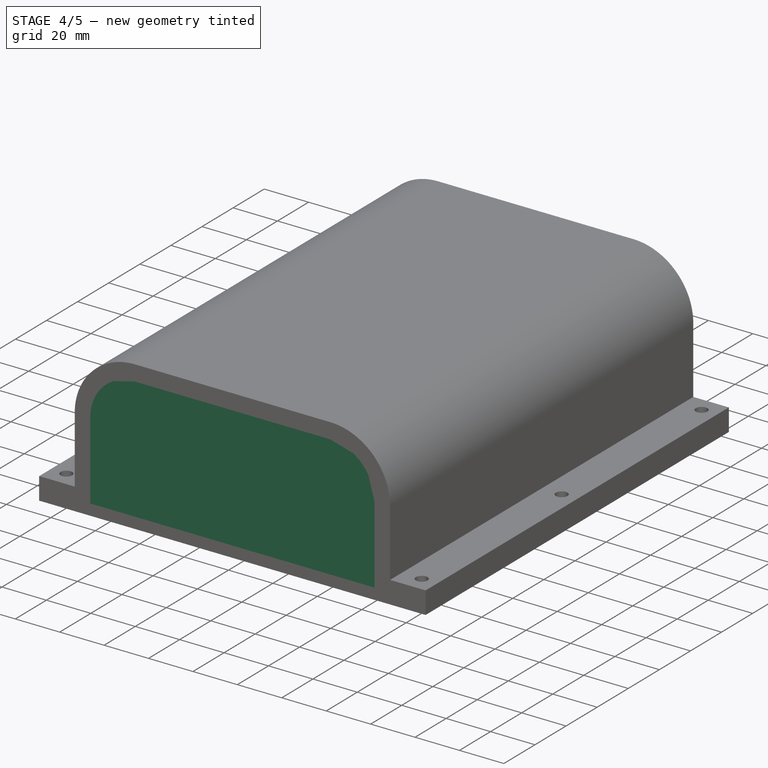
[diagram: stage 4 of 5 — iso view after this stage's code; geometry added in this stage tinted green]
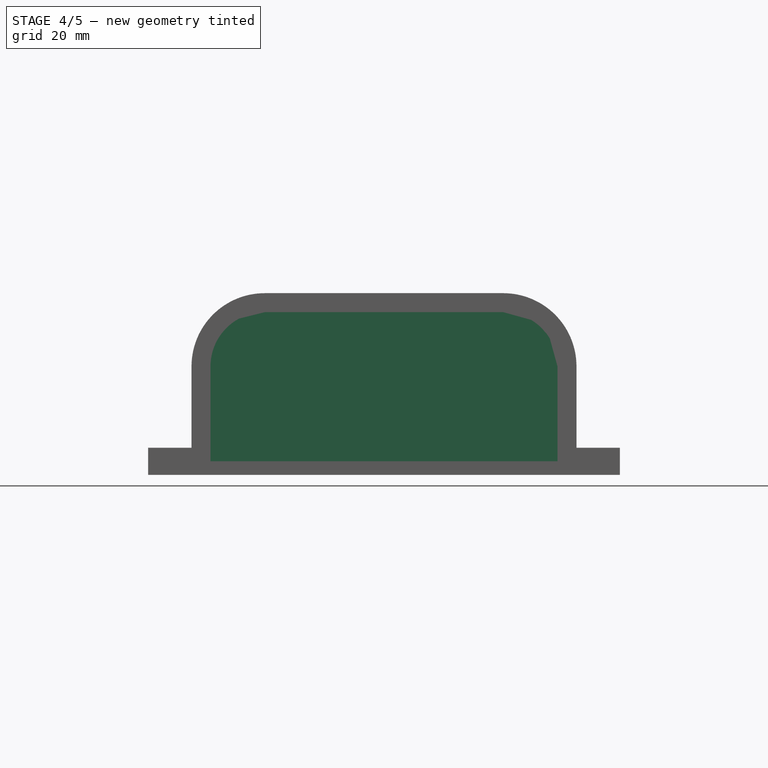
[diagram: stage 4 of 5 — front view after this stage's code; geometry added in this stage tinted green]
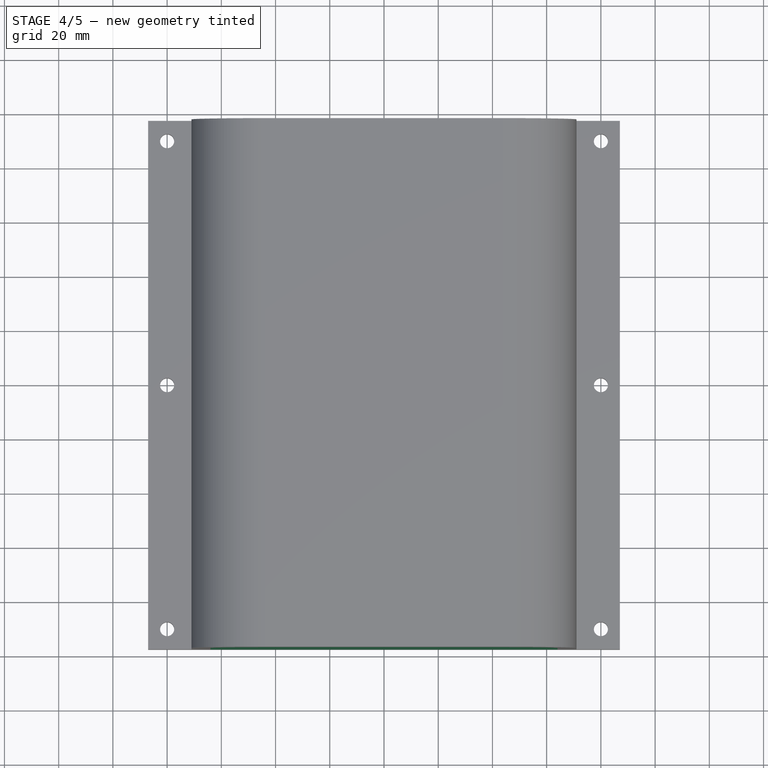
[diagram: stage 4 of 5 — top view after this stage's code; geometry added in this stage tinted green]
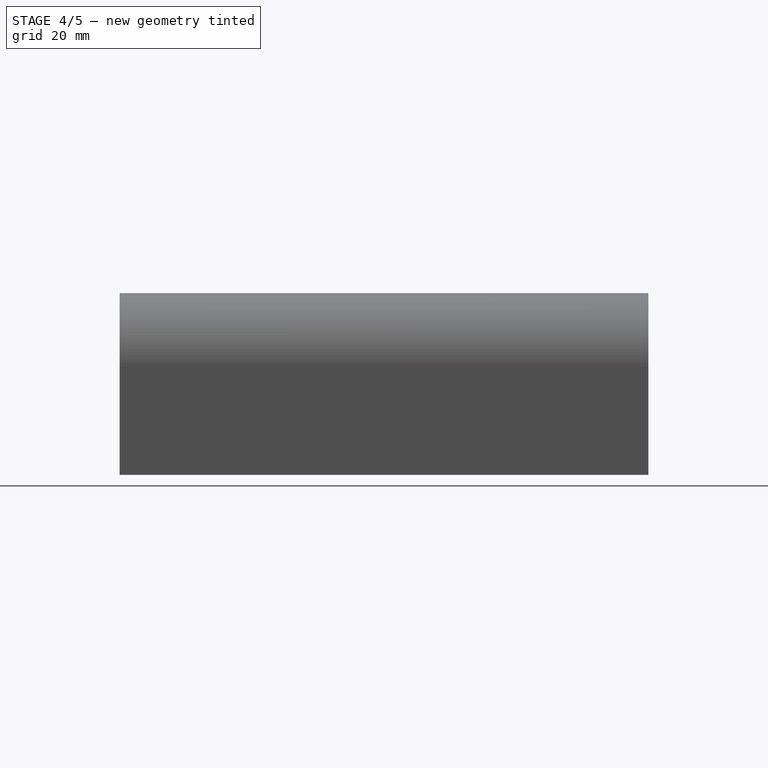
[diagram: stage 4 of 5 — right view after this stage's code; geometry added in this stage tinted green]
FEATURE [Sketcher::SketchObject] Sketch007
  ExternalGeometry = -> [Pad003]
  FullyConstrained = true
  MapMode = 5
  Placement = pos=(0,-97.5,0) rot=(1,0,0;1.5708rad)
  Support = -> [Pad003]
  sketch-geometry (6):
    g0: ArcOfCircle CenterX=-44 CenterY=40 CenterZ=0 NormalX=0 NormalY=0 NormalZ=1 AngleXU=0 Radius=23 StartAngle=1.5708 EndAngle=3.14159
    g1: ArcOfCircle CenterX=44 CenterY=40 CenterZ=0 NormalX=0 NormalY=0 NormalZ=1 AngleXU=0 Radius=23 StartAngle=0 EndAngle=1.5708
    g2: LineSegment StartX=-44 StartY=63 StartZ=0 EndX=44 EndY=63 EndZ=0
    g3: LineSegment StartX=-67 StartY=40 StartZ=0 EndX=-67 EndY=0 EndZ=0
    g4: LineSegment StartX=-67 StartY=-4e-16 StartZ=0 EndX=67 EndY=-4e-16 EndZ=0
    g5: LineSegment StartX=67 StartY=-4e-16 StartZ=0 EndX=67 EndY=40 EndZ=0
  constraints (18):
    c: Coincident(g0,g-3)
    c: DistanceY(g-3,g0) = 3
    c: Horizontal(g0,g-3)
    c: Vertical(g0,g-3)
    c: Coincident(g1,g-4)
    c: Vertical(g1,g-4)
    c: Horizontal(g-4,g1)
    c: DistanceY(g-4,g1) = 3
    c: Coincident(g2,g0)
    c: Coincident(g2,g1)
    c: Coincident(g3,g0)
    c: Vertical(g3)
    c: Coincident(g4,g3)
    c: Horizontal(g4)
    c: Coincident(g5,g4)
    c: Coincident(g5,g1)
    c: Vertical(g5)
    c: PointOnObject(g-1,g4)
FEATURE [PartDesign::Pad] Pad004
  Direction = (0,-1,2e-16)
  Length = 6
  Length2 = 10
  Profile = -> Sketch007
  ReferenceAxis = -> Sketch007 [N_Axis]
  Reversed = true
  Type = 0
FEATURE [PartDesign::Pocket] Pocket004
  BaseFeature = -> Pad004
  Direction = (0,1,-3e-16)
  Length = 5
  Length2 = 5
  Profile = -> Pad004 [Face37]
  Type = 1
FEATURE [PartDesign::Pocket] Pocket005
  BaseFeature = -> Pocket004
  Direction = (0,1,0)
  Length = 5
  Length2 = 5
  Profile = -> Pocket004 [Face39,Face19,Face53]
  Type = 1
FEATURE [PartDesign::Pocket] Pocket006
  BaseFeature = -> Pocket005
  Direction = (0,-1,0)
  Length = 189
  Length2 = 5
  Profile = -> Pocket005 [Face4,Face14,Face1]
  Type = 0
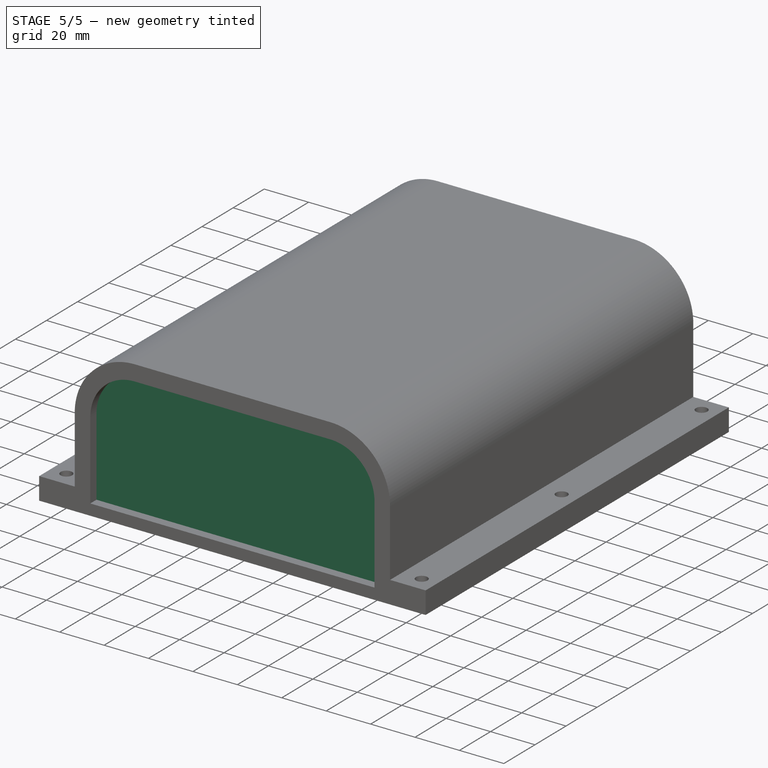
[diagram: stage 5 of 5 — iso view after this stage's code; geometry added in this stage tinted green]
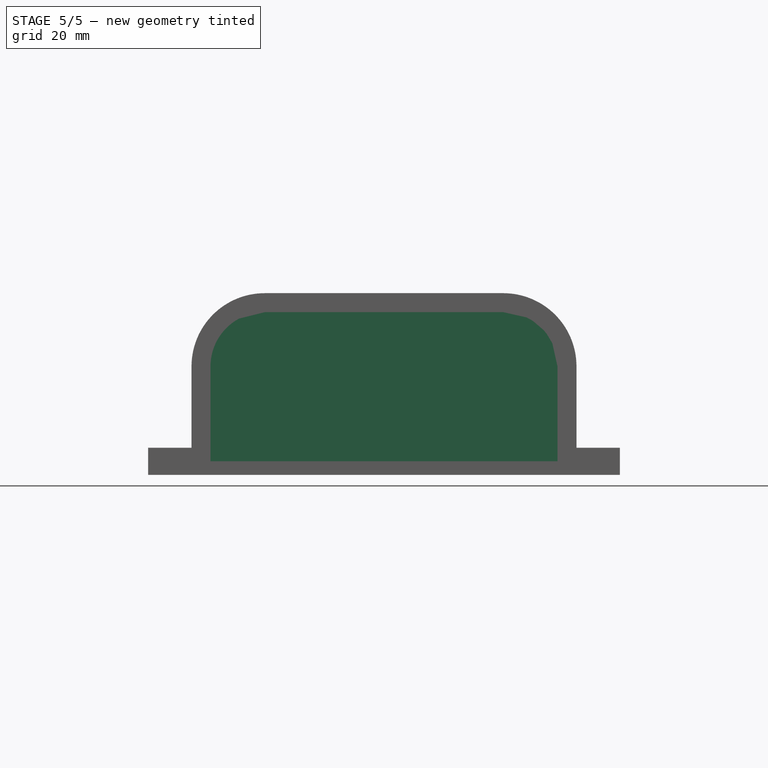
[diagram: stage 5 of 5 — front view after this stage's code; geometry added in this stage tinted green]
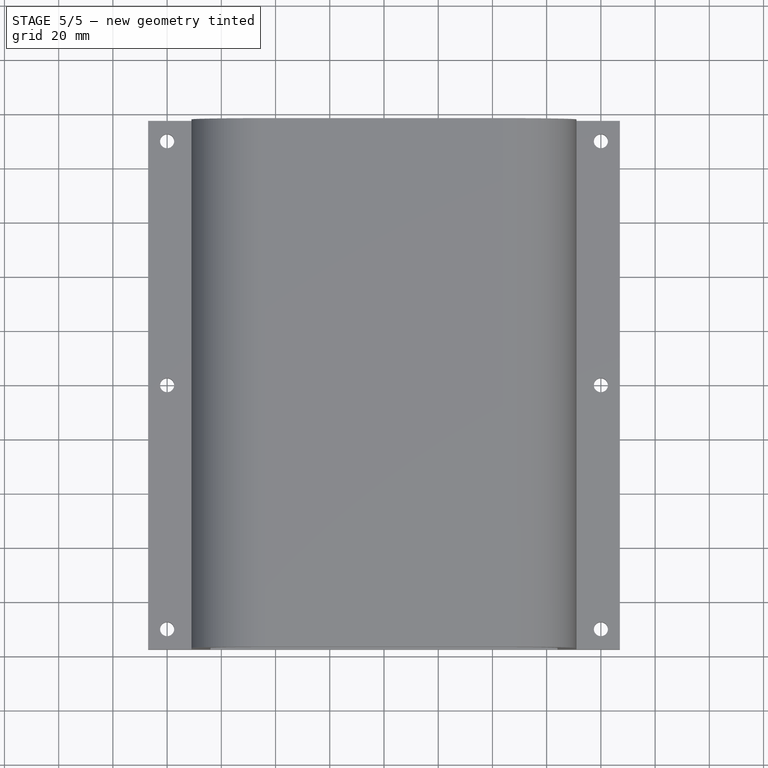
[diagram: stage 5 of 5 — top view after this stage's code; geometry added in this stage tinted green]
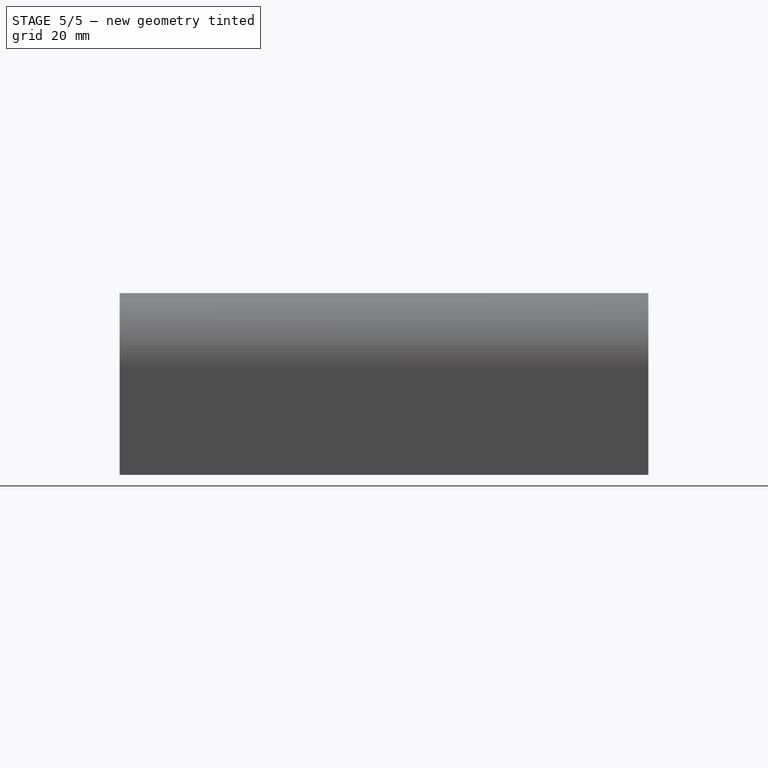
[diagram: stage 5 of 5 — right view after this stage's code; geometry added in this stage tinted green]
FEATURE [PartDesign::Pocket] Pocket007
  BaseFeature = -> Pocket006
  Direction = (0,2e-16,1)
  Length = 3
  Length2 = 5
  Profile = -> Pocket006 [Face3]
  Type = 0
FEATURE [PartDesign::Pad] Pad005
  BaseFeature = -> Pocket007
  Direction = (0,1,0)
  Length = 4
  Length2 = 10
  Profile = -> Pocket007 [Face5,Face6,Face1,Face7]
  Type = 0
FEATURE [PartDesign::Pocket] Pocket008
  BaseFeature = -> Pad005
  Direction = (0,1,-2e-16)
  Length = 4
  Length2 = 5
  Profile = -> Pad005 [Face2,Face9,Face8,Face7]
  Type = 0
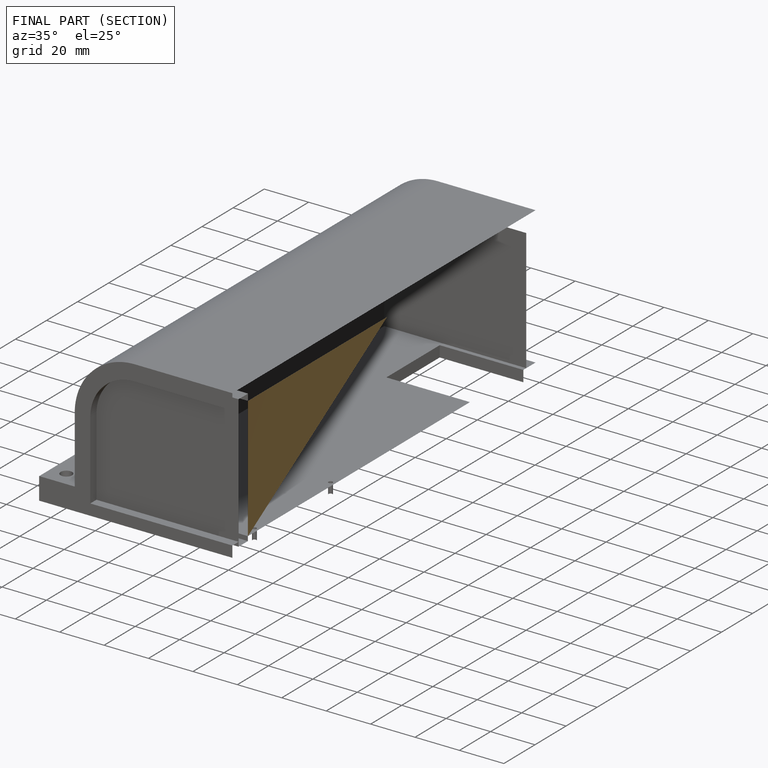
[diagram: finished part — half-section view (interior)]
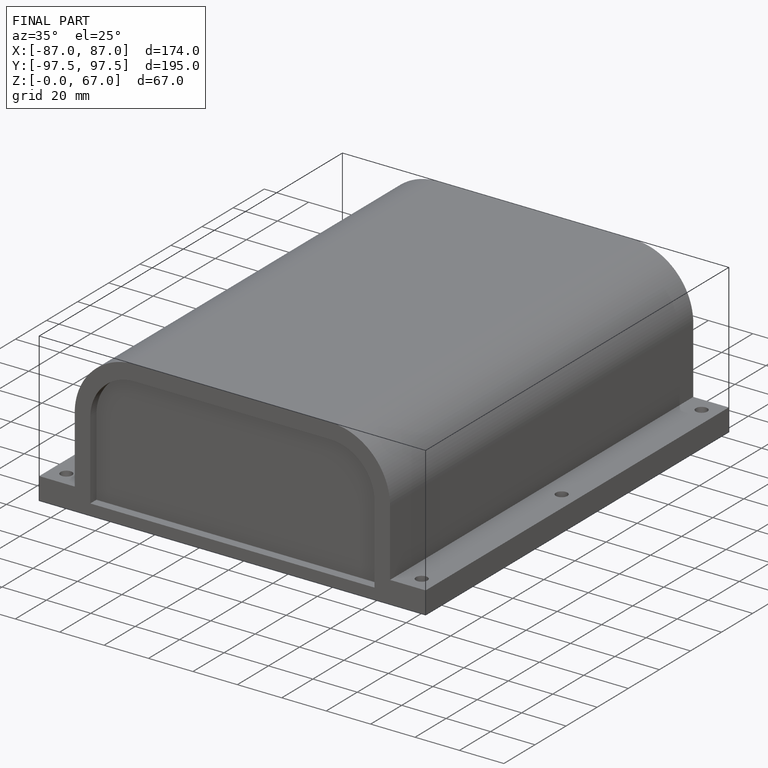
[diagram: finished part — iso view with bounding-box wireframe]
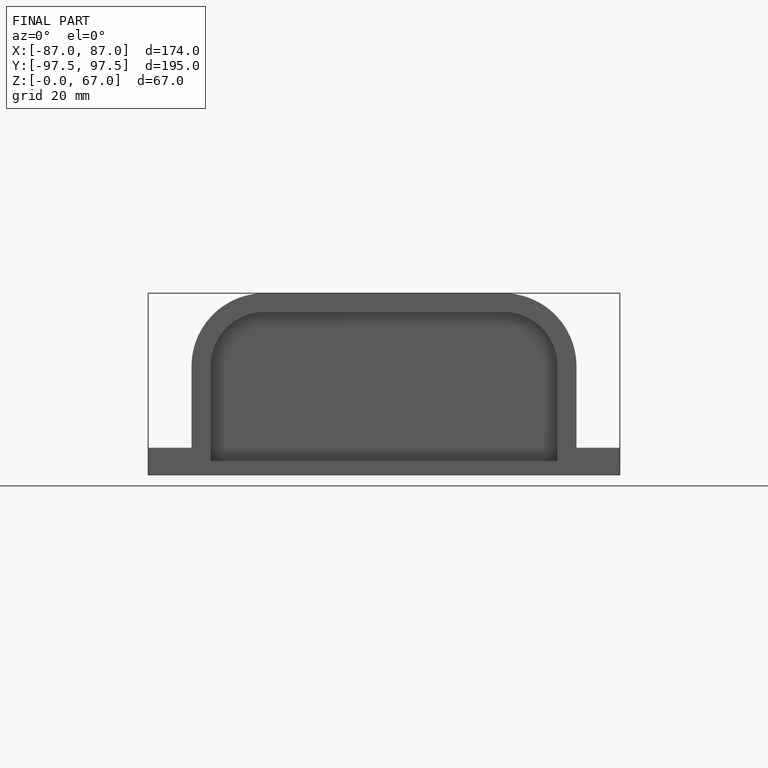
[diagram: finished part — front view with bounding-box wireframe]
